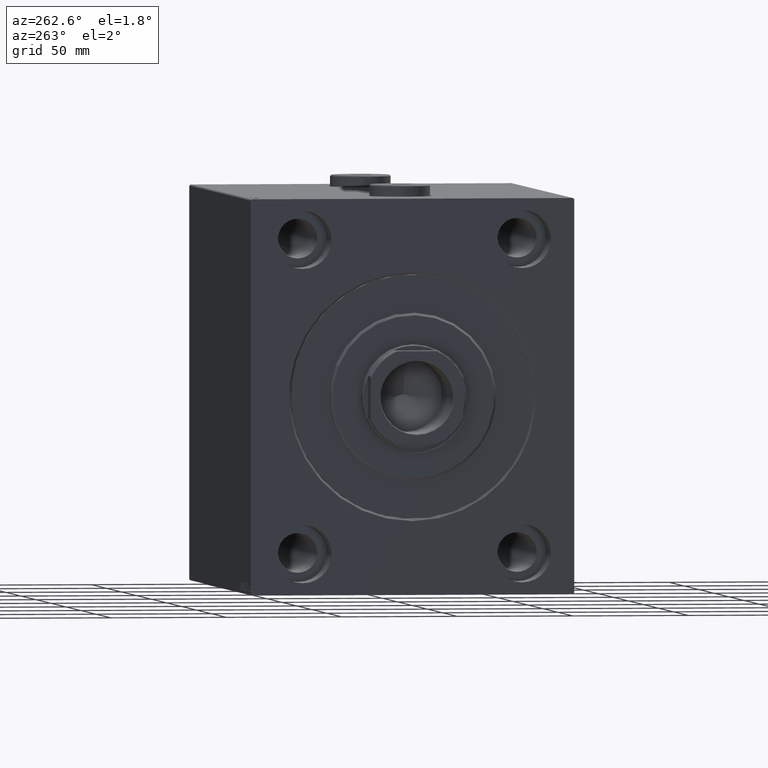
[diagram: clean part render]
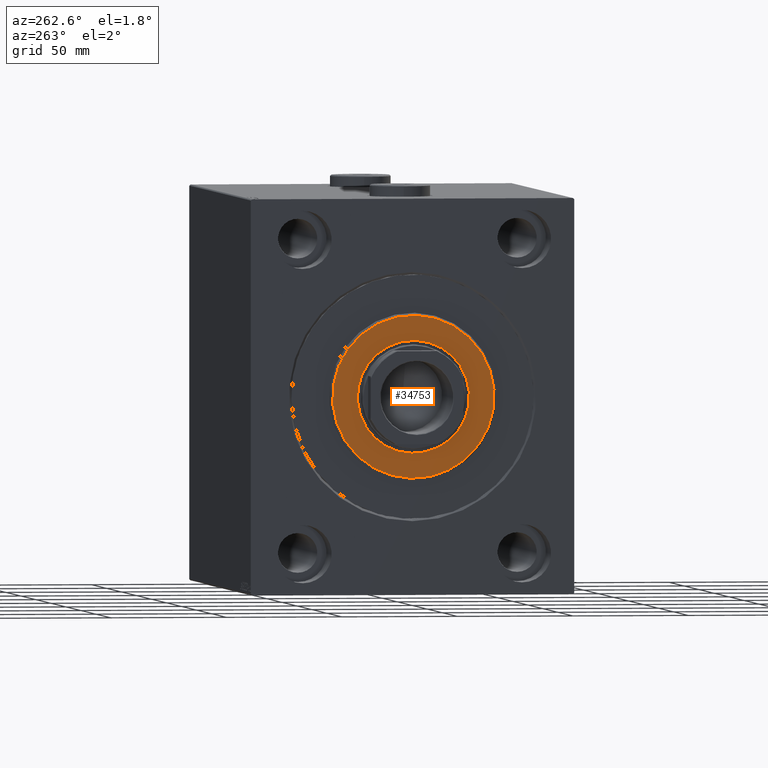
[diagram: same view with one face highlighted and labeled with its STEP entity id]
A machine part, auxiliary view. The second image highlights one B-rep face of the part: STEP entity #34753.
In plain terms, the highlighted planar face has unit normal (-1, 0, 0).
Its self-contained STEP definition (entity closure, byte-faithful):
#323 = DIRECTION ( 'NONE',  ( 1.000000000000000000, -0.000000000000000000, 0.000000000000000000 ) ) ;
#927 = CARTESIAN_POINT ( 'NONE',  ( 3.000000000000000000, 0.000000000000000000, 0.000000000000000000 ) ) ;
#1553 = DIRECTION ( 'NONE',  ( 0.000000000000000000, 0.000000000000000000, -1.000000000000000000 ) ) ;
#1953 = CARTESIAN_POINT ( 'NONE',  ( 3.000000000000000000, 0.000000000000000000, 0.000000000000000000 ) ) ;
#4759 = ORIENTED_EDGE ( 'NONE', *, *, #27767, .T. ) ;
#5159 = EDGE_CURVE ( 'NONE', #28569, #20063, #23927, .T. ) ;
#7609 = EDGE_LOOP ( 'NONE', ( #4759, #20181 ) ) ;
#7805 = AXIS2_PLACEMENT_3D ( 'NONE', #42937, #323, #39074 ) ;
#8423 = DIRECTION ( 'NONE',  ( -1.000000000000000000, 0.000000000000000000, -0.000000000000000000 ) ) ;
#8735 = AXIS2_PLACEMENT_3D ( 'NONE', #32730, #8423, #1553 ) ;
#8992 = DIRECTION ( 'NONE',  ( 0.000000000000000000, 0.000000000000000000, -1.000000000000000000 ) ) ;
#11252 = DIRECTION ( 'NONE',  ( 1.000000000000000000, -0.000000000000000000, 0.000000000000000000 ) ) ;
#11648 = EDGE_CURVE ( 'NONE', #42936, #12418, #28510, .T. ) ;
#12191 = DIRECTION ( 'NONE',  ( -1.000000000000000000, 0.000000000000000000, -0.000000000000000000 ) ) ;
#12314 = CIRCLE ( 'NONE', #13745, 35.00000000000002842 ) ;
#12418 = VERTEX_POINT ( 'NONE', #22715 ) ;
#13745 = AXIS2_PLACEMENT_3D ( 'NONE', #927, #11252, #21571 ) ;
#15283 = AXIS2_PLACEMENT_3D ( 'NONE', #1953, #18923, #43430 ) ;
#15709 = FACE_OUTER_BOUND ( 'NONE', #19630, .T. ) ;
#18923 = DIRECTION ( 'NONE',  ( 1.000000000000000000, -0.000000000000000000, 0.000000000000000000 ) ) ;
#19381 = FACE_BOUND ( 'NONE', #7609, .T. ) ;
#19630 = EDGE_LOOP ( 'NONE', ( #38068, #39980 ) ) ;
#20063 = VERTEX_POINT ( 'NONE', #44526 ) ;
#20181 = ORIENTED_EDGE ( 'NONE', *, *, #11648, .T. ) ;
#21571 = DIRECTION ( 'NONE',  ( 0.000000000000000000, 0.000000000000000000, -1.000000000000000000 ) ) ;
#22715 = CARTESIAN_POINT ( 'NONE',  ( 3.000000000000000000, 0.000000000000000000, 24.25000000000000000 ) ) ;
#23927 = CIRCLE ( 'NONE', #7805, 35.00000000000002842 ) ;
#27767 = EDGE_CURVE ( 'NONE', #12418, #42936, #35706, .T. ) ;
#28075 = CARTESIAN_POINT ( 'NONE',  ( 3.000000000000000000, 2.969768487932331287E-15, -24.25000000000000000 ) ) ;
#28383 = AXIS2_PLACEMENT_3D ( 'NONE', #29627, #12191, #8992 ) ;
#28510 = CIRCLE ( 'NONE', #8735, 24.25000000000000000 ) ;
#28569 = VERTEX_POINT ( 'NONE', #36526 ) ;
#29346 = EDGE_CURVE ( 'NONE', #20063, #28569, #12314, .T. ) ;
#29627 = CARTESIAN_POINT ( 'NONE',  ( 3.000000000000000000, 0.000000000000000000, 0.000000000000000000 ) ) ;
#32730 = CARTESIAN_POINT ( 'NONE',  ( 3.000000000000000000, 0.000000000000000000, 0.000000000000000000 ) ) ;
#33366 = PLANE ( 'NONE',  #15283 ) ;
#34753 = ADVANCED_FACE ( 'NONE', ( #15709, #19381 ), #33366, .T. ) ;
#35706 = CIRCLE ( 'NONE', #28383, 24.25000000000000000 ) ;
#36526 = CARTESIAN_POINT ( 'NONE',  ( 3.000000000000000000, 4.347496136973104859E-15, -35.00000000000002842 ) ) ;
#38068 = ORIENTED_EDGE ( 'NONE', *, *, #29346, .T. ) ;
#39074 = DIRECTION ( 'NONE',  ( 0.000000000000000000, 0.000000000000000000, -1.000000000000000000 ) ) ;
#39980 = ORIENTED_EDGE ( 'NONE', *, *, #5159, .T. ) ;
#42936 = VERTEX_POINT ( 'NONE', #28075 ) ;
#42937 = CARTESIAN_POINT ( 'NONE',  ( 3.000000000000000000, 0.000000000000000000, 0.000000000000000000 ) ) ;
#43430 = DIRECTION ( 'NONE',  ( 0.000000000000000000, 0.000000000000000000, -1.000000000000000000 ) ) ;
#44526 = CARTESIAN_POINT ( 'NONE',  ( 3.000000000000000000, 0.000000000000000000, 35.00000000000002842 ) ) ;